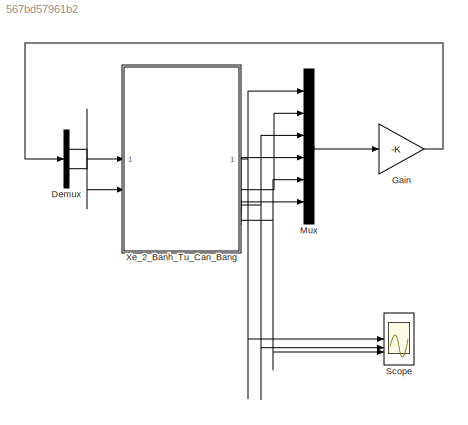
MODEL slx_567bd57961b2
KIND model
CONFIG AbsTol = auto
CONFIG EnableMultiTasking = off
CONFIG FixedStep = auto
CONFIG MaxStep = auto
CONFIG MinStep = auto
CONFIG RelTol = 1e-3
CONFIG SampleTimeConstraint = Unconstrained
CONFIG SolverName = VariableStepAuto
CONFIG StartTime = 0.0
CONFIG StopTime = 10
BLOCK [Demux] Demux
  Outputs = 2
BLOCK [Gain] Gain
  Gain = -K
  Multiplication = Matrix(K*u)
BLOCK [Mux] Mux
  DisplayOption = bar
  Inputs = 6
BLOCK [Scope] Scope
  Floating = off
  NumInputPorts = 3
  ScopeSpecificationString = Simulink.scopes.TimeScopeBlockCfg('CurrentConfiguration', extmgr.ConfigurationSet(extmgr.Configuration('Core','General UI',true,'FigureColor',[1 1 1]),extmgr.Configuration('Core','Source UI',true),extmgr.Configuration('Sources','WiredSimulink',true),extmgr.Configuration('Visuals','Time Domain',true,'SerializedDisplays',{struct('MinYLimReal','-0.04273','MaxYLimReal','0.38461','YLabelReal','','MinYL...<+3350ch>
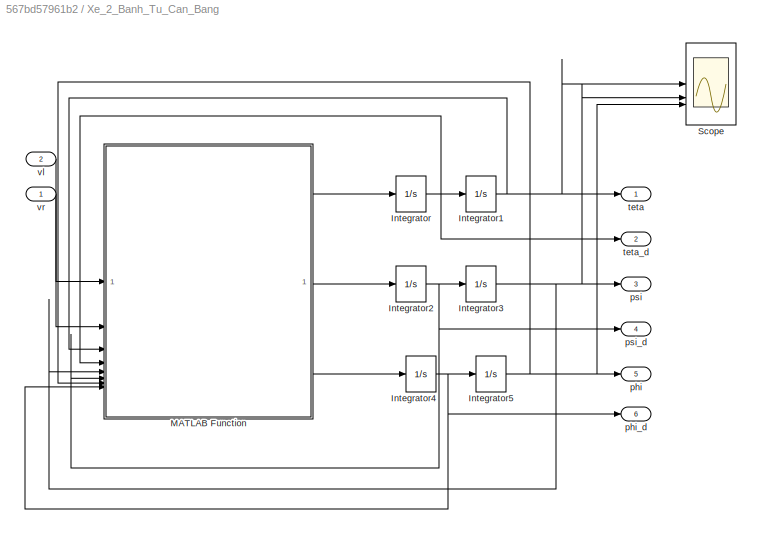
BLOCK [SubSystem] Xe_2_Banh_Tu_Can_Bang
BLOCK [Integrator] Xe_2_Banh_Tu_Can_Bang/Integrator
  InitialCondition = x2_init
BLOCK [Integrator] Xe_2_Banh_Tu_Can_Bang/Integrator1
  InitialCondition = x1_init
BLOCK [Integrator] Xe_2_Banh_Tu_Can_Bang/Integrator2
  InitialCondition = x5_init
BLOCK [Integrator] Xe_2_Banh_Tu_Can_Bang/Integrator3
  InitialCondition = x4_init
BLOCK [Integrator] Xe_2_Banh_Tu_Can_Bang/Integrator4
  InitialCondition = x8_init
BLOCK [Integrator] Xe_2_Banh_Tu_Can_Bang/Integrator5
  InitialCondition = x7_init
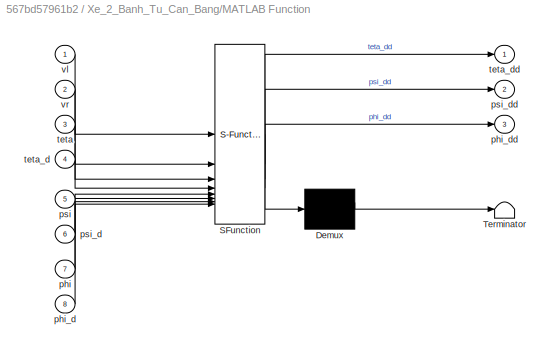
BLOCK [SubSystem] Xe_2_Banh_Tu_Can_Bang/MATLAB Function
  ErrorFcn = Stateflow.Translate.translate
  PermitHierarchicalResolution = ExplicitOnly
  SFBlockType = MATLAB Function
  TreatAsAtomicUnit = on
BLOCK [Demux] Xe_2_Banh_Tu_Can_Bang/MATLAB Function/ Demux 
  Outputs = 1
BLOCK [S-Function] Xe_2_Banh_Tu_Can_Bang/MATLAB Function/ SFunction 
  EnableBusSupport = on
  FunctionName = sf_sfun
  PortCounts = [8 4]
  SFcnIsStateOwnerBlock = off
  SFunctionDeploymentMode = off
  Tag = Stateflow S-Function 4
BLOCK [Terminator] Xe_2_Banh_Tu_Can_Bang/MATLAB Function/ Terminator 
BLOCK [Inport] Xe_2_Banh_Tu_Can_Bang/MATLAB Function/phi
  Port = 7
BLOCK [Inport] Xe_2_Banh_Tu_Can_Bang/MATLAB Function/phi_d
  Port = 8
BLOCK [Outport] Xe_2_Banh_Tu_Can_Bang/MATLAB Function/phi_dd
  Port = 3
BLOCK [Inport] Xe_2_Banh_Tu_Can_Bang/MATLAB Function/psi
  Port = 5
BLOCK [Inport] Xe_2_Banh_Tu_Can_Bang/MATLAB Function/psi_d
  Port = 6
BLOCK [Outport] Xe_2_Banh_Tu_Can_Bang/MATLAB Function/psi_dd
  Port = 2
BLOCK [Inport] Xe_2_Banh_Tu_Can_Bang/MATLAB Function/teta
  Port = 3
BLOCK [Inport] Xe_2_Banh_Tu_Can_Bang/MATLAB Function/teta_d
  Port = 4
BLOCK [Outport] Xe_2_Banh_Tu_Can_Bang/MATLAB Function/teta_dd
BLOCK [Inport] Xe_2_Banh_Tu_Can_Bang/MATLAB Function/vl
BLOCK [Inport] Xe_2_Banh_Tu_Can_Bang/MATLAB Function/vr
  Port = 2
BLOCK [Scope] Xe_2_Banh_Tu_Can_Bang/Scope
  Floating = off
  NumInputPorts = 3
  ScopeSpecificationString = Simulink.scopes.TimeScopeBlockCfg('CurrentConfiguration', extmgr.ConfigurationSet(extmgr.Configuration('Core','General UI',true,'FigureColor',[1 1 1]),extmgr.Configuration('Core','Source UI',true),extmgr.Configuration('Sources','WiredSimulink',true,'DataLoggingVariableName','ScopeData1'),extmgr.Configuration('Visuals','Time Domain',true,'SerializedDisplays',{struct('MinYLimReal','-3.05105','MaxYLi...<+3124ch>
BLOCK [Outport] Xe_2_Banh_Tu_Can_Bang/phi
  Port = 5
BLOCK [Outport] Xe_2_Banh_Tu_Can_Bang/phi_d
  Port = 6
BLOCK [Outport] Xe_2_Banh_Tu_Can_Bang/psi
  Port = 3
BLOCK [Outport] Xe_2_Banh_Tu_Can_Bang/psi_d
  Port = 4
BLOCK [Outport] Xe_2_Banh_Tu_Can_Bang/teta
BLOCK [Outport] Xe_2_Banh_Tu_Can_Bang/teta_d
  Port = 2
BLOCK [Inport] Xe_2_Banh_Tu_Can_Bang/vl
  Port = 2
BLOCK [Inport] Xe_2_Banh_Tu_Can_Bang/vr
LINE Demux:1 -> Xe_2_Banh_Tu_Can_Bang:2
LINE Demux:2 -> Xe_2_Banh_Tu_Can_Bang:1
LINE Gain:1 -> Demux:1
LINE Mux:1 -> Gain:1
NET Xe_2_Banh_Tu_Can_Bang/Integrator1:1 -> Xe_2_Banh_Tu_Can_Bang/MATLAB Function:3, Xe_2_Banh_Tu_Can_Bang/Scope:1, Xe_2_Banh_Tu_Can_Bang/teta:1
NET Xe_2_Banh_Tu_Can_Bang/Integrator2:1 -> Xe_2_Banh_Tu_Can_Bang/Integrator3:1, Xe_2_Banh_Tu_Can_Bang/MATLAB Function:6, Xe_2_Banh_Tu_Can_Bang/psi_d:1
NET Xe_2_Banh_Tu_Can_Bang/Integrator3:1 -> Xe_2_Banh_Tu_Can_Bang/MATLAB Function:5, Xe_2_Banh_Tu_Can_Bang/Scope:2, Xe_2_Banh_Tu_Can_Bang/psi:1
NET Xe_2_Banh_Tu_Can_Bang/Integrator4:1 -> Xe_2_Banh_Tu_Can_Bang/Integrator5:1, Xe_2_Banh_Tu_Can_Bang/MATLAB Function:8, Xe_2_Banh_Tu_Can_Bang/phi_d:1
NET Xe_2_Banh_Tu_Can_Bang/Integrator5:1 -> Xe_2_Banh_Tu_Can_Bang/MATLAB Function:7, Xe_2_Banh_Tu_Can_Bang/Scope:3, Xe_2_Banh_Tu_Can_Bang/phi:1
NET Xe_2_Banh_Tu_Can_Bang/Integrator:1 -> Xe_2_Banh_Tu_Can_Bang/Integrator1:1, Xe_2_Banh_Tu_Can_Bang/MATLAB Function:4, Xe_2_Banh_Tu_Can_Bang/teta_d:1
LINE Xe_2_Banh_Tu_Can_Bang/MATLAB Function:1 -> Xe_2_Banh_Tu_Can_Bang/Integrator:1
LINE Xe_2_Banh_Tu_Can_Bang/MATLAB Function:2 -> Xe_2_Banh_Tu_Can_Bang/Integrator2:1
LINE Xe_2_Banh_Tu_Can_Bang/MATLAB Function:3 -> Xe_2_Banh_Tu_Can_Bang/Integrator4:1
LINE Xe_2_Banh_Tu_Can_Bang/vl:1 -> Xe_2_Banh_Tu_Can_Bang/MATLAB Function:1
LINE Xe_2_Banh_Tu_Can_Bang/vr:1 -> Xe_2_Banh_Tu_Can_Bang/MATLAB Function:2
NET Xe_2_Banh_Tu_Can_Bang:1 -> Mux:1, Scope:1
LINE Xe_2_Banh_Tu_Can_Bang:2 -> Mux:2
NET Xe_2_Banh_Tu_Can_Bang:3 -> Mux:3, Scope:2
LINE Xe_2_Banh_Tu_Can_Bang:4 -> Mux:4
NET Xe_2_Banh_Tu_Can_Bang:5 -> Mux:5, Scope:3
LINE Xe_2_Banh_Tu_Can_Bang:6 -> Mux:6
note: NET lines group one-source signal fan-out (src -> all destinations, sorted); 1:1 wires keep LINE
CHART Xe_2_Banh_Tu_Can_Bang/MATLAB Function states=1 transitions=1
  STATE_LABEL 'eML_blk_kernel()'
  STATE_LABEL 'SCRIPT:\nfunction [teta_dd,psi_dd,phi_dd] = fcn(vl,vr,teta,teta_d,psi,psi_d,phi,phi_d)\n\n%% Thông số hệ thống xe 2 bánh tự cân bằng dùng LQR\nm = 0.04; %Khoi luong banh xe\nM = 0.72; %Khoi luong robot\nR = 0.0325; %ban kinh ban xe\nW = 0.16; %Chieu rong robot\nD = 0.08; %Chieu sau robot\nH = 0.113; %Chieu cao robot\nL = 0.565; %khoang cach tu trong tam den truc banh xe\nfw = 0.18; %He so ma sat giua banh xe...<+2264ch>'
CHART  states=0 transitions=0
